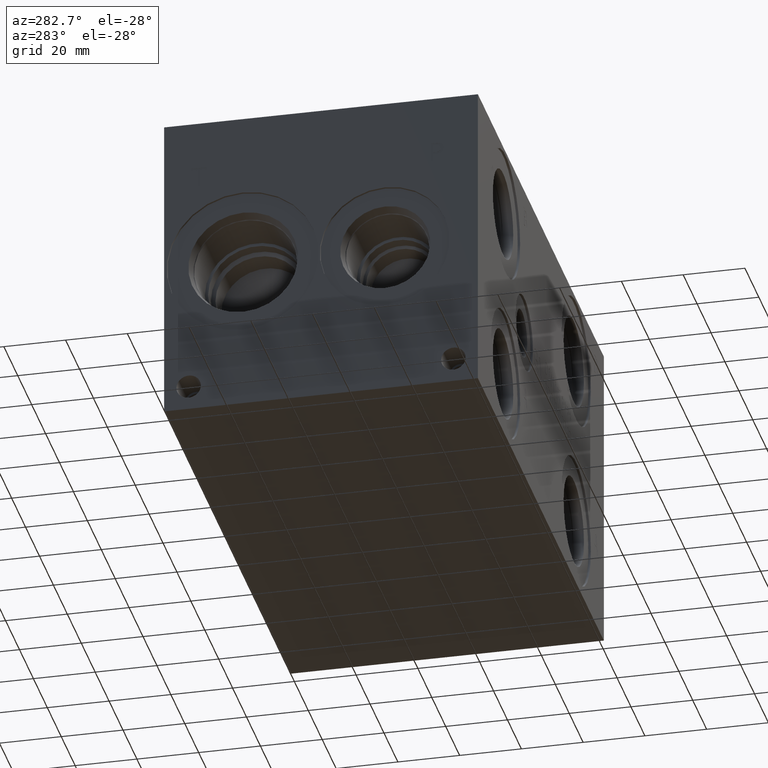
[diagram: clean part render]
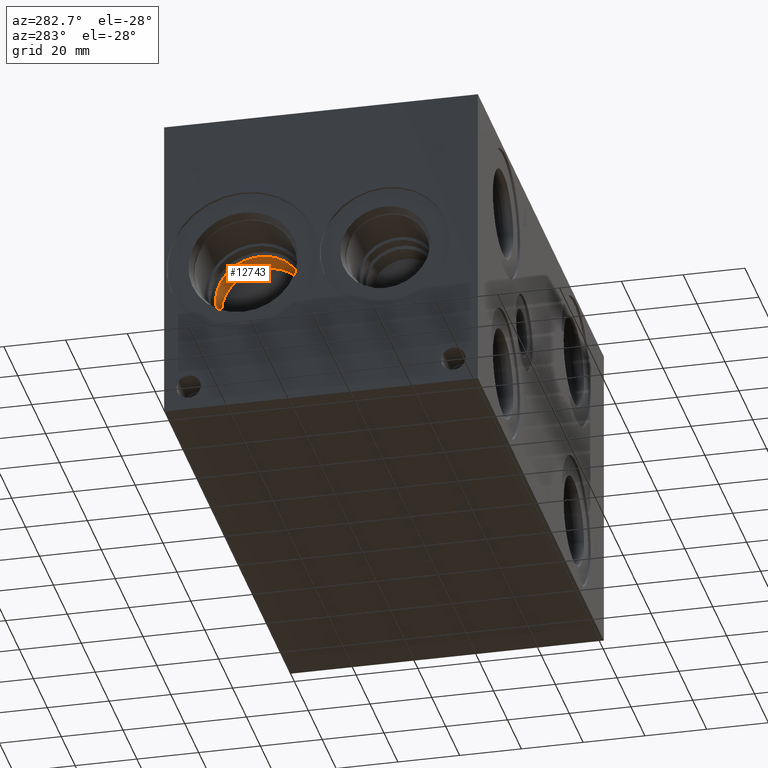
[diagram: same view with one face highlighted and labeled with its STEP entity id]
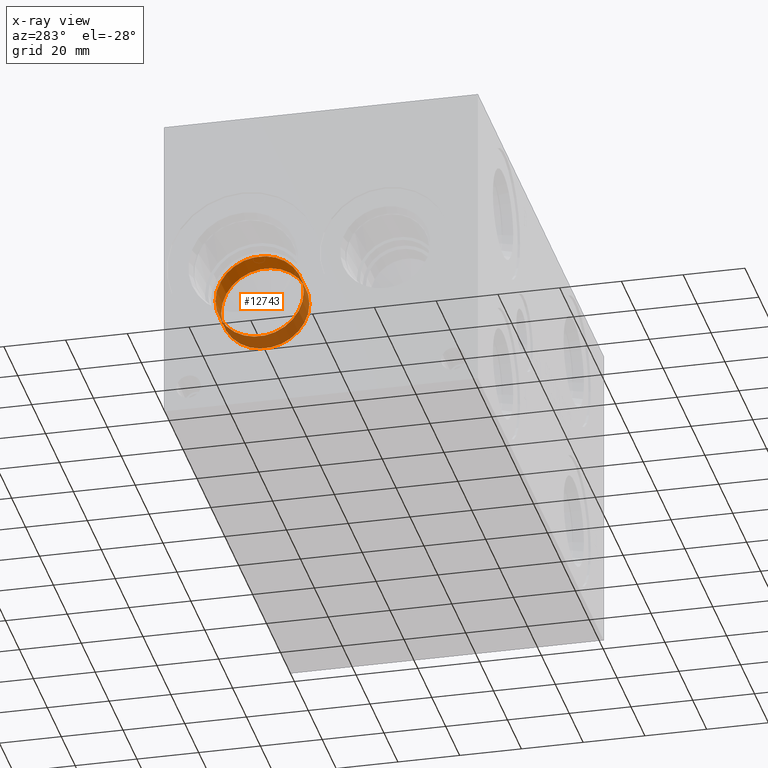
[diagram: x-ray of the same camera — body ghosted, the highlighted face saturated]
A machine part, auxiliary view. The second image highlights one B-rep face of the part: STEP entity #12743.
The next image is the same camera in x-ray: the body ghosted, the highlighted face saturated — about 53% of this face is hidden behind the body in this view.
In plain terms, the highlighted cylindrical surface (bore or boss wall) has radius 14.2875 mm, axis along (-1, 0, 0).
Its self-contained STEP definition (entity closure, byte-faithful):
#42=CYLINDRICAL_SURFACE('',#13386,14.2875);
#268=CIRCLE('',#13384,14.2875);
#269=CIRCLE('',#13385,14.2875);
#270=CIRCLE('',#13387,14.2875);
#1563=FACE_OUTER_BOUND('',#2296,.T.);
#2296=EDGE_LOOP('',(#10766,#10767,#10768,#10769,#10770));
#3528=LINE('',#21531,#4702);
#4702=VECTOR('',#15802,14.2875);
#5811=VERTEX_POINT('',#21522);
#5812=VERTEX_POINT('',#21523);
#5814=VERTEX_POINT('',#21529);
#7520=EDGE_CURVE('',#5811,#5812,#268,.T.);
#7522=EDGE_CURVE('',#5812,#5811,#269,.T.);
#7523=EDGE_CURVE('',#5814,#5814,#270,.T.);
#7524=EDGE_CURVE('',#5814,#5812,#3528,.T.);
#10766=ORIENTED_EDGE('',*,*,#7523,.F.);
#10767=ORIENTED_EDGE('',*,*,#7524,.T.);
#10768=ORIENTED_EDGE('',*,*,#7520,.F.);
#10769=ORIENTED_EDGE('',*,*,#7522,.F.);
#10770=ORIENTED_EDGE('',*,*,#7524,.F.);
#12743=ADVANCED_FACE('',(#1563),#42,.F.);
#13384=AXIS2_PLACEMENT_3D('',#21524,#15793,#15794);
#13385=AXIS2_PLACEMENT_3D('',#21527,#15796,#15797);
#13386=AXIS2_PLACEMENT_3D('',#21528,#15798,#15799);
#13387=AXIS2_PLACEMENT_3D('',#21530,#15800,#15801);
#15793=DIRECTION('center_axis',(-1.,0.,0.));
#15794=DIRECTION('ref_axis',(0.,1.,0.));
#15796=DIRECTION('center_axis',(-1.,0.,0.));
#15797=DIRECTION('ref_axis',(0.,1.,0.));
#15798=DIRECTION('center_axis',(-1.,0.,0.));
#15799=DIRECTION('ref_axis',(0.,1.,0.));
#15800=DIRECTION('center_axis',(1.,0.,0.));
#15801=DIRECTION('ref_axis',(0.,1.,0.));
#15802=DIRECTION('',(1.,0.,0.));
#21522=CARTESIAN_POINT('',(32.64806,90.4875,50.8));
#21523=CARTESIAN_POINT('',(32.64806,61.9125,50.8));
#21524=CARTESIAN_POINT('Origin',(32.64806,76.2,50.8));
#21527=CARTESIAN_POINT('Origin',(32.64806,76.2,50.8));
#21528=CARTESIAN_POINT('Origin',(16.32403,76.2,50.8));
#21529=CARTESIAN_POINT('',(24.3991668561624,61.9125,50.8));
#21530=CARTESIAN_POINT('Origin',(24.3991668561624,76.2,50.8));
#21531=CARTESIAN_POINT('',(16.32403,61.9125,50.8));